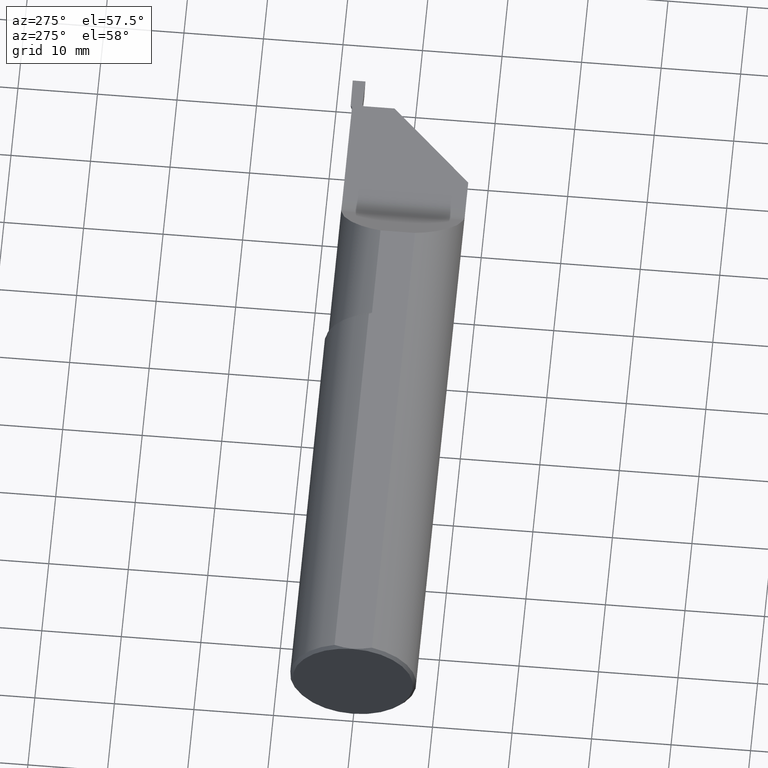
[diagram: clean part render]
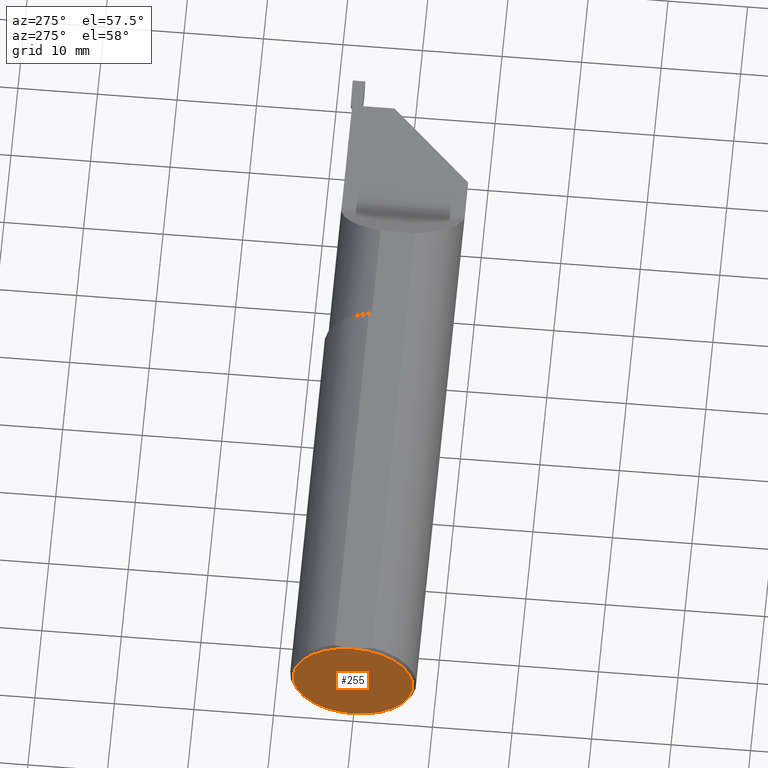
[diagram: same view with one face highlighted and labeled with its STEP entity id]
A machine part, auxiliary view. The second image highlights one B-rep face of the part: STEP entity #255.
In plain terms, the highlighted planar face has unit normal (1, 0, 0).
Its self-contained STEP definition (entity closure, byte-faithful):
#1 = CARTESIAN_POINT ( 'NONE',  ( 0.000000000000000000, 0.000000000000000000, 0.000000000000000000 ) ) ;
#34 = DIRECTION ( 'NONE',  ( -1.000000000000000000, -0.000000000000000000, -0.000000000000000000 ) ) ;
#63 = DIRECTION ( 'NONE',  ( 0.000000000000000000, 0.000000000000000000, -1.000000000000000000 ) ) ;
#71 = CARTESIAN_POINT ( 'NONE',  ( 0.000000000000000000, 3.641487257264648486E-17, 0.2973499999999995036 ) ) ;
#105 = VERTEX_POINT ( 'NONE', #71 ) ;
#255 = ADVANCED_FACE ( 'NONE', ( #362 ), #640, .F. ) ;
#271 = CIRCLE ( 'NONE', #786, 0.2973499999999995036 ) ;
#328 = AXIS2_PLACEMENT_3D ( 'NONE', #645, #655, #509 ) ;
#362 = FACE_OUTER_BOUND ( 'NONE', #782, .T. ) ;
#368 = VERTEX_POINT ( 'NONE', #533 ) ;
#407 = EDGE_CURVE ( 'NONE', #368, #105, #481, .T. ) ;
#450 = DIRECTION ( 'NONE',  ( 0.000000000000000000, 0.000000000000000000, -1.000000000000000000 ) ) ;
#481 = CIRCLE ( 'NONE', #652, 0.2973499999999995036 ) ;
#509 = DIRECTION ( 'NONE',  ( 0.000000000000000000, 0.000000000000000000, -1.000000000000000000 ) ) ;
#533 = CARTESIAN_POINT ( 'NONE',  ( 0.000000000000000000, 0.000000000000000000, -0.2973499999999995036 ) ) ;
#543 = DIRECTION ( 'NONE',  ( -1.000000000000000000, -0.000000000000000000, -0.000000000000000000 ) ) ;
#640 = PLANE ( 'NONE',  #328 ) ;
#645 = CARTESIAN_POINT ( 'NONE',  ( 0.000000000000000000, 0.000000000000000000, 0.000000000000000000 ) ) ;
#652 = AXIS2_PLACEMENT_3D ( 'NONE', #1, #543, #63 ) ;
#654 = CARTESIAN_POINT ( 'NONE',  ( 0.000000000000000000, 0.000000000000000000, 0.000000000000000000 ) ) ;
#655 = DIRECTION ( 'NONE',  ( 1.000000000000000000, 0.000000000000000000, 0.000000000000000000 ) ) ;
#729 = ORIENTED_EDGE ( 'NONE', *, *, #407, .T. ) ;
#768 = EDGE_CURVE ( 'NONE', #105, #368, #271, .T. ) ;
#782 = EDGE_LOOP ( 'NONE', ( #729, #870 ) ) ;
#786 = AXIS2_PLACEMENT_3D ( 'NONE', #654, #34, #450 ) ;
#870 = ORIENTED_EDGE ( 'NONE', *, *, #768, .T. ) ;